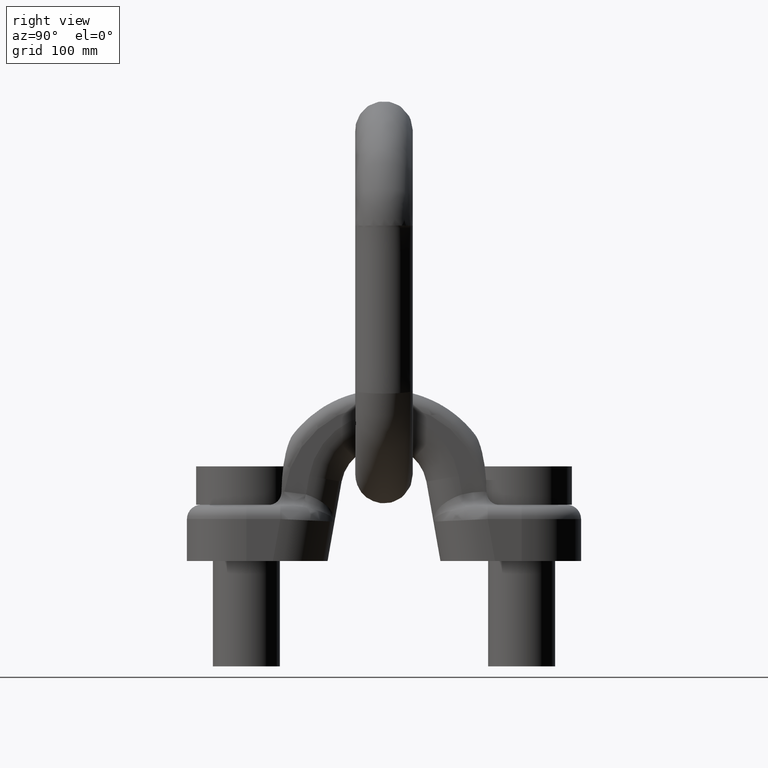
[diagram: clean part render]
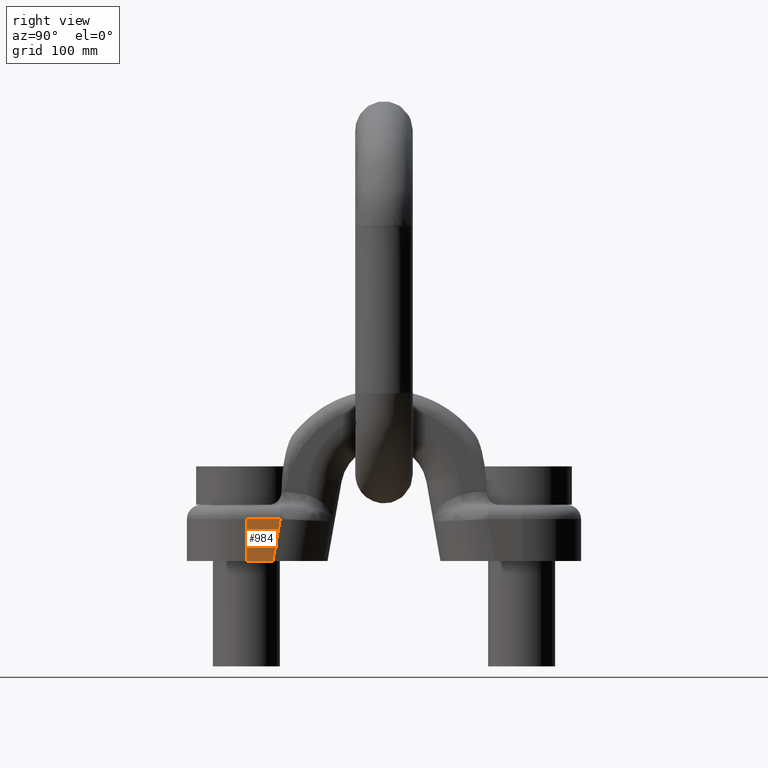
[diagram: same view with one face highlighted and labeled with its STEP entity id]
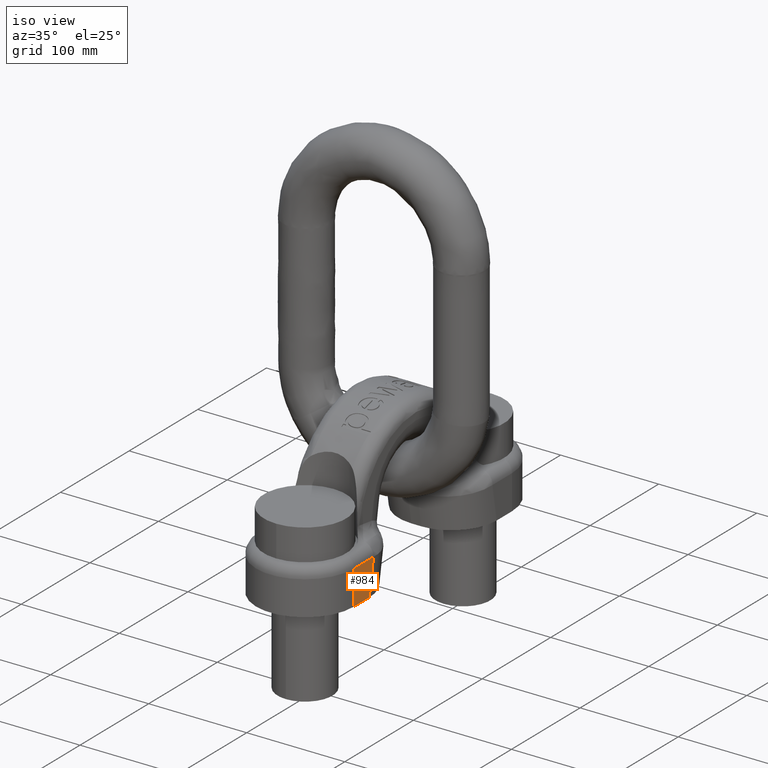
[diagram: same view with one face highlighted and labeled with its STEP entity id]
A machine part, right view. The second image highlights one B-rep face of the part: STEP entity #984.
A second angle (iso view) of the same face is appended — the face is thin or edge-on in the first view.
In plain terms, the highlighted planar face has unit normal (-1, 0, 0).
Its self-contained STEP definition (entity closure, byte-faithful):
#745=PLANE('',#3559);
#840=FACE_OUTER_BOUND('',#1238,.T.);
#984=ADVANCED_FACE('',(#840),#745,.F.);
#1238=EDGE_LOOP('',(#2089,#2090,#2091,#2092));
#1663=LINE('',#5043,#1781);
#1664=LINE('',#5046,#1782);
#1665=LINE('',#5048,#1783);
#1666=LINE('',#5050,#1784);
#1781=VECTOR('',#3832,1.);
#1782=VECTOR('',#3833,1.);
#1783=VECTOR('',#3834,1.);
#1784=VECTOR('',#3835,1.);
#2089=ORIENTED_EDGE('',*,*,#3149,.T.);
#2090=ORIENTED_EDGE('',*,*,#3150,.T.);
#2091=ORIENTED_EDGE('',*,*,#3151,.T.);
#2092=ORIENTED_EDGE('',*,*,#3152,.T.);
#2871=VERTEX_POINT('',#5044);
#2872=VERTEX_POINT('',#5045);
#2873=VERTEX_POINT('',#5047);
#2874=VERTEX_POINT('',#5049);
#3149=EDGE_CURVE('',#2871,#2872,#1663,.T.);
#3150=EDGE_CURVE('',#2872,#2873,#1664,.T.);
#3151=EDGE_CURVE('',#2873,#2874,#1665,.T.);
#3152=EDGE_CURVE('',#2874,#2871,#1666,.T.);
#3559=AXIS2_PLACEMENT_3D('',#5051,#3836,#3837);
#3832=DIRECTION('',(0.,0.17364817766693,0.984807753012208));
#3833=DIRECTION('',(0.,-1.,4.02254719067086E-16));
#3834=DIRECTION('',(0.,0.,-1.));
#3835=DIRECTION('',(0.,1.,0.));
#3836=DIRECTION('',(-1.,0.,0.));
#3837=DIRECTION('',(0.,0.,1.));
#5043=CARTESIAN_POINT('',(50.,-79.7694279939889,74.0655023910213));
#5044=CARTESIAN_POINT('',(50.,-92.8291744052532,0.));
#5045=CARTESIAN_POINT('',(50.,-86.657730080457,35.));
#5046=CARTESIAN_POINT('',(50.,-115.,35.));
#5047=CARTESIAN_POINT('',(50.,-115.,35.0000000000001));
#5048=CARTESIAN_POINT('',(50.,-115.,336.));
#5049=CARTESIAN_POINT('',(50.,-115.,0.));
#5050=CARTESIAN_POINT('',(50.,-115.,0.));
#5051=CARTESIAN_POINT('',(50.,-115.,336.));